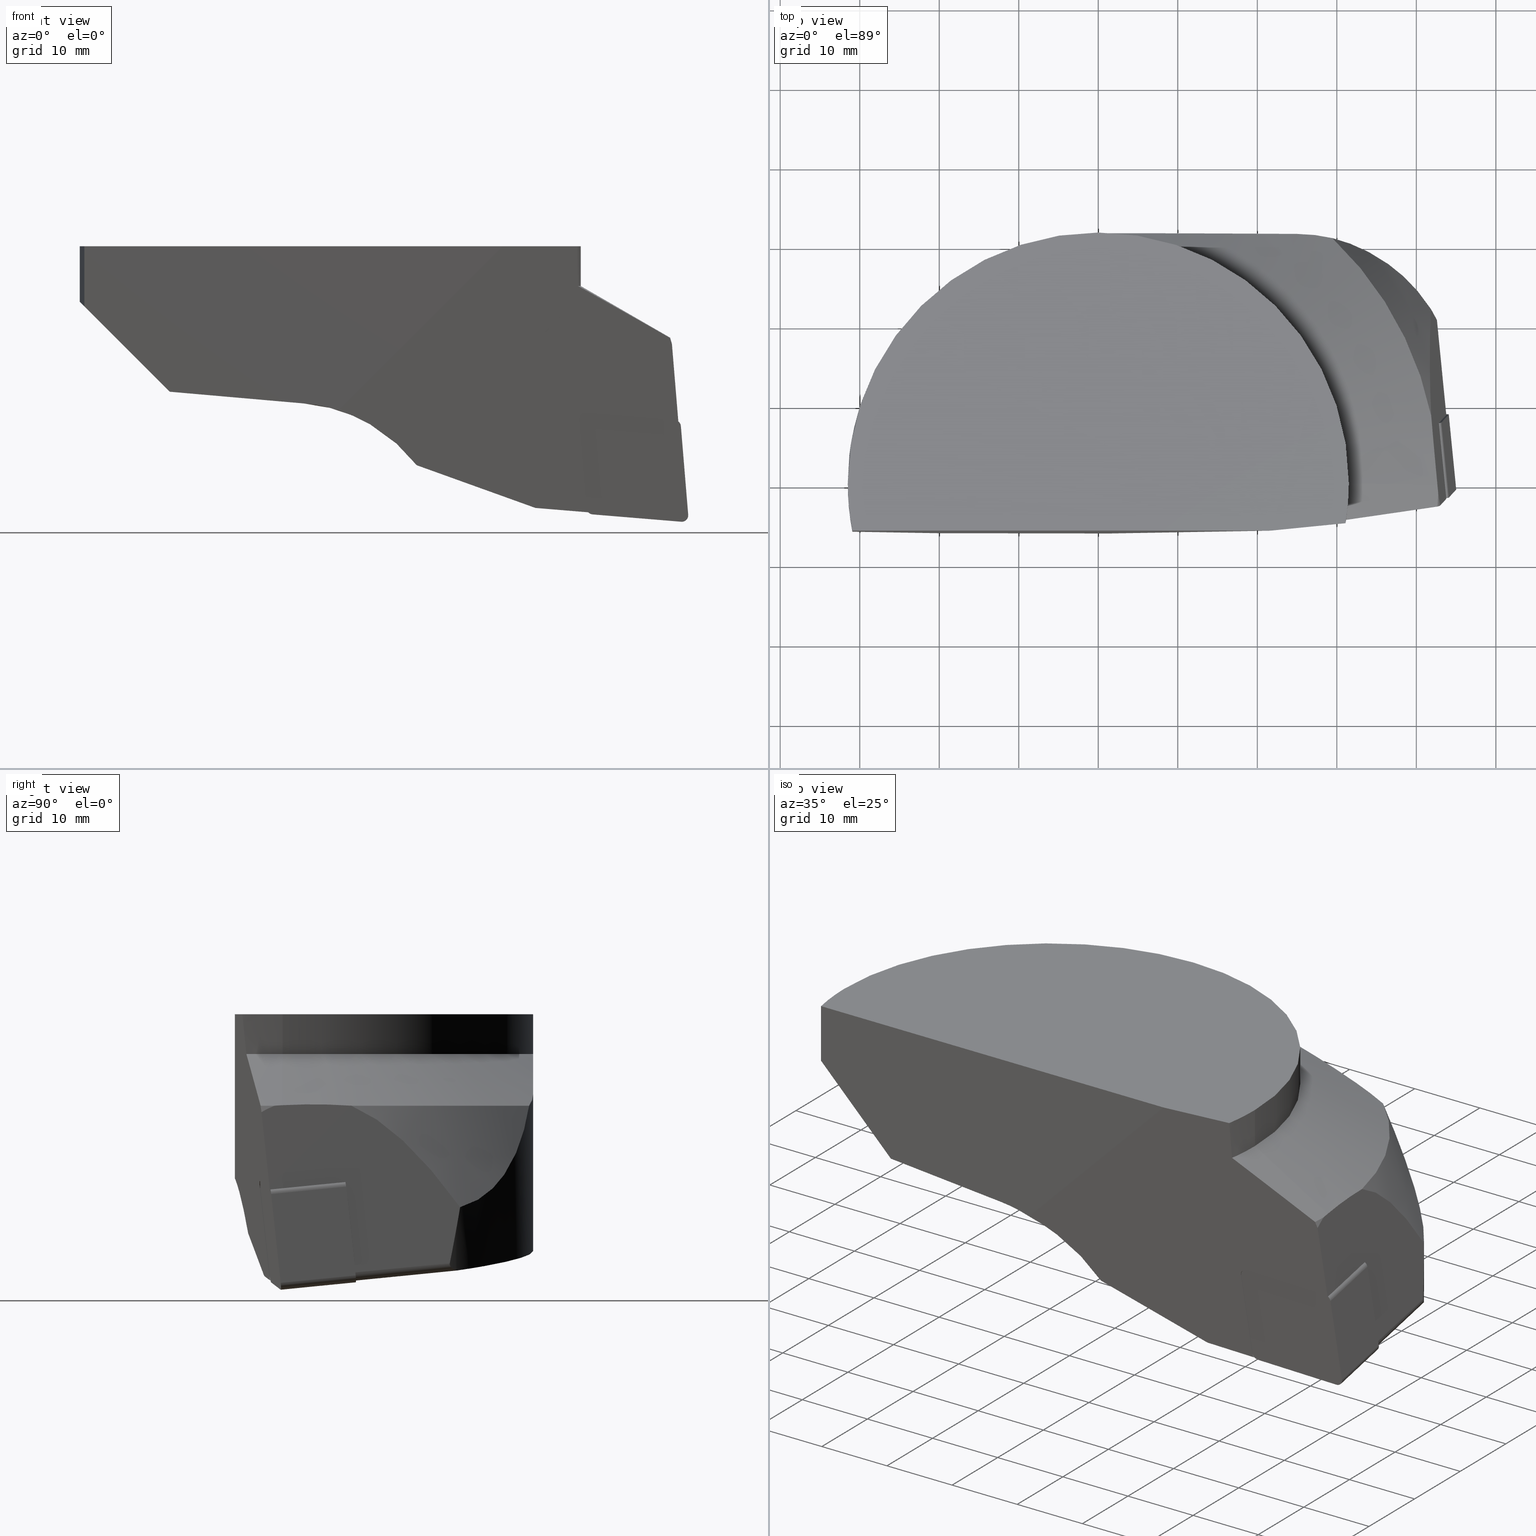
[diagram: canonical four-view strip — front | top / right | iso, engineering-drawing reading convention]
A machine part, canonical four-view strip (front | top / right | iso — engineering-drawing reading convention). The complete STEP part file that produces these views, byte-faithful:
ISO-10303-21;
HEADER;
FILE_DESCRIPTION((''),'1');
FILE_NAME('//Big_tech03/bigt/Translate/11_3D_Field/02_Step_Field/91_\X2\65CB524A30C430FC30EB\X0\/F\X2\30AB30FC30C830EA30C330B8\X0\/F63-DCLNR-45035-12.stp','2012-12-13T08:05:24',(''),(''),'Spatial Interop R18','Kubotek KeyCreator V8.5.1 (14335)',' ');
FILE_SCHEMA(('CONFIG_CONTROL_DESIGN'));
ENDSEC;
DATA;
#1=DESIGN_CONTEXT('',#27,'design');
#2=APPLICATION_PROTOCOL_DEFINITION('INTERNATIONAL STANDARD','config_control_design',1994,#27);
#3=PRODUCT_CATEGORY_RELATIONSHIP('NONE','NONE',#28,#29);
#4=DATE_AND_TIME(#30,#31);
#5=DATE_TIME_ROLE('creation_date');
#6=DATE_TIME_ROLE('classification_date');
#7=PERSON_AND_ORGANIZATION_ROLE('creator');
#8=PERSON_AND_ORGANIZATION_ROLE('design_supplier');
#9=PERSON_AND_ORGANIZATION_ROLE('classification_officer');
#10=PERSON_AND_ORGANIZATION_ROLE('design_owner');
#11=APPROVAL_PERSON_ORGANIZATION(#32,#33,#34);
#12=APPROVAL_DATE_TIME(#4,#33);
#13=CC_DESIGN_APPROVAL(#33,(#35,#36,#37));
#14=CC_DESIGN_DATE_AND_TIME_ASSIGNMENT(#4,#5,(#37));
#15=CC_DESIGN_DATE_AND_TIME_ASSIGNMENT(#4,#6,(#35));
#16=CC_DESIGN_PERSON_AND_ORGANIZATION_ASSIGNMENT(#32,#10,(#38));
#17=CC_DESIGN_PERSON_AND_ORGANIZATION_ASSIGNMENT(#32,#7,(#37));
#18=CC_DESIGN_PERSON_AND_ORGANIZATION_ASSIGNMENT(#32,#7,(#36));
#19=CC_DESIGN_PERSON_AND_ORGANIZATION_ASSIGNMENT(#32,#8,(#36));
#20=CC_DESIGN_SECURITY_CLASSIFICATION(#35,(#36));
#21=CC_DESIGN_PERSON_AND_ORGANIZATION_ASSIGNMENT(#32,#9,(#35));
#22=SHAPE_DEFINITION_REPRESENTATION(#39,#40);
#23= (GEOMETRIC_REPRESENTATION_CONTEXT(3)GLOBAL_UNCERTAINTY_ASSIGNED_CONTEXT((#43))GLOBAL_UNIT_ASSIGNED_CONTEXT((#45,#46,#47))REPRESENTATION_CONTEXT('NONE','WORKSPACE'));
#27=APPLICATION_CONTEXT('CONFIGURATION CONTROLLED 3D DESIGNS OF MECHANICAL PARTS AND ASSEMBLIES');
#28=PRODUCT_CATEGORY('part','NONE');
#29=PRODUCT_RELATED_PRODUCT_CATEGORY('detail',' ',(#38));
#30=CALENDAR_DATE(2012,13,11);
#31=LOCAL_TIME(17,5,24.0,#49);
#32=PERSON_AND_ORGANIZATION(#50,#51);
#33=APPROVAL(#52,'SOLID MODEL');
#34=APPROVAL_ROLE('APPROVED');
#35=SECURITY_CLASSIFICATION('','',#53);
#36=PRODUCT_DEFINITION_FORMATION_WITH_SPECIFIED_SOURCE(' ','NONE',#38,.NOT_KNOWN.);
#37=PRODUCT_DEFINITION('NONE','NONE',#36,#1);
#38=PRODUCT('1','1','PART-1-DESC',(#54));
#39=PRODUCT_DEFINITION_SHAPE('NONE','NONE',#37);
#40=ADVANCED_BREP_SHAPE_REPRESENTATION('1',(#55,#56),#23);
#43=UNCERTAINTY_MEASURE_WITH_UNIT(LENGTH_MEASURE(1.0E-006),#45,'','');
#45= (CONVERSION_BASED_UNIT('MILLIMETRE',#59)LENGTH_UNIT()NAMED_UNIT(#62));
#46= (NAMED_UNIT(#64)PLANE_ANGLE_UNIT()SI_UNIT($,.RADIAN.));
#47= (NAMED_UNIT(#64)SOLID_ANGLE_UNIT()SI_UNIT($,.STERADIAN.));
#49=COORDINATED_UNIVERSAL_TIME_OFFSET(9,0,.AHEAD.);
#50=PERSON('','UNSPECIFIED',$,$,$,$);
#51=ORGANIZATION('UNSPECIFIED','UNSPECIFIED','UNSPECIFIED');
#52=APPROVAL_STATUS('approved');
#53=SECURITY_CLASSIFICATION_LEVEL('unclassified');
#54=MECHANICAL_CONTEXT('',#27,'mechanical');
#55=MANIFOLD_SOLID_BREP('1',#70);
#56=AXIS2_PLACEMENT_3D('',#71,#72,#73);
#59=LENGTH_MEASURE_WITH_UNIT(LENGTH_MEASURE(1.0),#74);
#62=DIMENSIONAL_EXPONENTS(1.0,0.0,0.0,0.0,0.0,0.0,0.0);
#64=DIMENSIONAL_EXPONENTS(0.0,0.0,0.0,0.0,0.0,0.0,0.0);
#70=CLOSED_SHELL('',(#75,#76,#77,#78,#79,#80,#81,#82,#83,#84,#85,#86,#87,#88,#89,#90,#91,#92,#93,#94,#95,#96,#97,#98,#99,#100,#101,#102,#103,#104,#105,#106));
#71=CARTESIAN_POINT('',(0.0,0.0,0.0));
#72=DIRECTION('',(0.0,0.0,1.0));
#73=DIRECTION('',(1.0,0.0,0.0));
#74= (NAMED_UNIT(#62)LENGTH_UNIT()SI_UNIT(.MILLI.,.METRE.));
#75=ADVANCED_FACE('',(#108),#109,.T.);
#76=ADVANCED_FACE('',(#110),#111,.F.);
#77=ADVANCED_FACE('',(#112),#113,.T.);
#78=ADVANCED_FACE('',(#114),#115,.F.);
#79=ADVANCED_FACE('',(#116),#117,.T.);
#80=ADVANCED_FACE('',(#118),#119,.F.);
#81=ADVANCED_FACE('',(#120),#121,.T.);
#82=ADVANCED_FACE('',(#122),#123,.F.);
#83=ADVANCED_FACE('',(#124),#125,.T.);
#84=ADVANCED_FACE('',(#126),#127,.F.);
#85=ADVANCED_FACE('',(#128),#129,.T.);
#86=ADVANCED_FACE('',(#130),#131,.F.);
#87=ADVANCED_FACE('',(#132),#133,.T.);
#88=ADVANCED_FACE('',(#134),#135,.T.);
#89=ADVANCED_FACE('',(#136),#137,.T.);
#90=ADVANCED_FACE('',(#138),#139,.T.);
#91=ADVANCED_FACE('',(#140),#141,.T.);
#92=ADVANCED_FACE('',(#142),#143,.T.);
#93=ADVANCED_FACE('',(#144),#145,.T.);
#94=ADVANCED_FACE('',(#146),#147,.T.);
#95=ADVANCED_FACE('',(#148),#149,.T.);
#96=ADVANCED_FACE('',(#150),#151,.T.);
#97=ADVANCED_FACE('',(#152),#153,.T.);
#98=ADVANCED_FACE('',(#154),#155,.T.);
#99=ADVANCED_FACE('',(#156),#157,.T.);
#100=ADVANCED_FACE('',(#158),#159,.T.);
#101=ADVANCED_FACE('',(#160),#161,.T.);
#102=ADVANCED_FACE('',(#162),#163,.F.);
#103=ADVANCED_FACE('',(#164),#165,.T.);
#104=ADVANCED_FACE('',(#166),#167,.T.);
#105=ADVANCED_FACE('',(#168),#169,.T.);
#106=ADVANCED_FACE('',(#170),#171,.T.);
#108=FACE_OUTER_BOUND('',#172,.T.);
#109=CYLINDRICAL_SURFACE('',#173,0.80000741148832);
#110=FACE_OUTER_BOUND('',#174,.T.);
#111=PLANE('',#175);
#112=FACE_OUTER_BOUND('',#176,.T.);
#113=CYLINDRICAL_SURFACE('',#177,0.799992667747076);
#114=FACE_OUTER_BOUND('',#178,.T.);
#115=PLANE('',#179);
#116=FACE_OUTER_BOUND('',#180,.T.);
#117=CYLINDRICAL_SURFACE('',#181,0.8);
#118=FACE_OUTER_BOUND('',#182,.T.);
#119=PLANE('',#183);
#120=FACE_OUTER_BOUND('',#184,.T.);
#121=PLANE('',#185);
#122=FACE_OUTER_BOUND('',#186,.T.);
#123=CYLINDRICAL_SURFACE('',#187,0.800007411488319);
#124=FACE_OUTER_BOUND('',#188,.T.);
#125=PLANE('',#189);
#126=FACE_OUTER_BOUND('',#190,.T.);
#127=CYLINDRICAL_SURFACE('',#191,0.800000273792741);
#128=FACE_OUTER_BOUND('',#192,.T.);
#129=PLANE('',#193);
#130=FACE_OUTER_BOUND('',#194,.T.);
#131=CYLINDRICAL_SURFACE('',#195,0.799992667747076);
#132=FACE_OUTER_BOUND('',#196,.T.);
#133=PLANE('',#197);
#134=FACE_OUTER_BOUND('',#198,.T.);
#135=PLANE('',#199);
#136=FACE_OUTER_BOUND('',#200,.T.);
#137=PLANE('',#201);
#138=FACE_OUTER_BOUND('',#202,.T.);
#139=PLANE('',#203);
#140=FACE_OUTER_BOUND('',#204,.T.);
#141=PLANE('',#205);
#142=FACE_OUTER_BOUND('',#206,.T.);
#143=CYLINDRICAL_SURFACE('',#207,20.0);
#144=FACE_OUTER_BOUND('',#208,.T.);
#145=CYLINDRICAL_SURFACE('',#209,1.19999999999999);
#146=FACE_OUTER_BOUND('',#210,.T.);
#147=CYLINDRICAL_SURFACE('',#211,31.5);
#148=FACE_OUTER_BOUND('',#212,.T.);
#149=CYLINDRICAL_SURFACE('',#213,31.5);
#150=FACE_OUTER_BOUND('',#214,.T.);
#151=CONICAL_SURFACE('',#215,33.0935274423847,1.0471975488034);
#152=FACE_OUTER_BOUND('',#216,.T.);
#153=CONICAL_SURFACE('',#217,33.1071076825604,1.0471975488034);
#154=FACE_OUTER_BOUND('',#218,.T.);
#155=CYLINDRICAL_SURFACE('',#219,31.5);
#156=FACE_OUTER_BOUND('',#220,.T.);
#157=CYLINDRICAL_SURFACE('',#221,1.19999999999998);
#158=FACE_OUTER_BOUND('',#222,.T.);
#159=CONICAL_SURFACE('',#223,43.4193818987798,0.349065849601138);
#160=FACE_OUTER_BOUND('',#224,.T.);
#161=PLANE('',#225);
#162=FACE_OUTER_BOUND('',#226,.T.);
#163=CYLINDRICAL_SURFACE('',#227,20.0);
#164=FACE_OUTER_BOUND('',#228,.T.);
#165=PLANE('',#229);
#166=FACE_OUTER_BOUND('',#230,.T.);
#167=PLANE('',#231);
#168=FACE_OUTER_BOUND('',#232,.T.);
#169=PLANE('',#233);
#170=FACE_OUTER_BOUND('',#234,.T.);
#171=CONICAL_SURFACE('',#235,42.8001588308081,0.349065849601111);
#172=EDGE_LOOP('',(#236,#237,#238,#239));
#173=AXIS2_PLACEMENT_3D('',#240,#241,#242);
#174=EDGE_LOOP('',(#243,#244,#245,#246,#247,#248,#249,#250,#251));
#175=AXIS2_PLACEMENT_3D('',#252,#253,#254);
#176=EDGE_LOOP('',(#255,#256,#257,#258));
#177=AXIS2_PLACEMENT_3D('',#259,#260,#261);
#178=EDGE_LOOP('',(#262,#263,#264,#265));
#179=AXIS2_PLACEMENT_3D('',#266,#267,#268);
#180=EDGE_LOOP('',(#269,#270,#271,#272));
#181=AXIS2_PLACEMENT_3D('',#273,#274,#275);
#182=EDGE_LOOP('',(#276,#277,#278,#279));
#183=AXIS2_PLACEMENT_3D('',#280,#281,#282);
#184=EDGE_LOOP('',(#283,#284,#285,#286,#287,#288,#289,#290,#291,#292));
#185=AXIS2_PLACEMENT_3D('',#293,#294,#295);
#186=EDGE_LOOP('',(#296,#297,#298,#299));
#187=AXIS2_PLACEMENT_3D('',#300,#301,#302);
#188=EDGE_LOOP('',(#303,#304,#305,#306));
#189=AXIS2_PLACEMENT_3D('',#307,#308,#309);
#190=EDGE_LOOP('',(#310,#311,#312,#313));
#191=AXIS2_PLACEMENT_3D('',#314,#315,#316);
#192=EDGE_LOOP('',(#317,#318,#319,#320));
#193=AXIS2_PLACEMENT_3D('',#321,#322,#323);
#194=EDGE_LOOP('',(#324,#325,#326,#327));
#195=AXIS2_PLACEMENT_3D('',#328,#329,#330);
#196=EDGE_LOOP('',(#331,#332,#333,#334,#335,#336,#337,#338,#339,#340));
#197=AXIS2_PLACEMENT_3D('',#341,#342,#343);
#198=EDGE_LOOP('',(#344,#345,#346,#347,#348,#349,#350,#351,#352,#353,#354,#355,#356,#357));
#199=AXIS2_PLACEMENT_3D('',#358,#359,#360);
#200=EDGE_LOOP('',(#361,#362,#363,#364));
#201=AXIS2_PLACEMENT_3D('',#365,#366,#367);
#202=EDGE_LOOP('',(#368,#369,#370,#371,#372,#373,#374,#375));
#203=AXIS2_PLACEMENT_3D('',#376,#377,#378);
#204=EDGE_LOOP('',(#379,#380,#381,#382,#383,#384));
#205=AXIS2_PLACEMENT_3D('',#385,#386,#387);
#206=EDGE_LOOP('',(#388,#389,#390,#391,#392,#393,#394));
#207=AXIS2_PLACEMENT_3D('',#395,#396,#397);
#208=EDGE_LOOP('',(#398,#399,#400,#401));
#209=AXIS2_PLACEMENT_3D('',#402,#403,#404);
#210=EDGE_LOOP('',(#405,#406,#407,#408));
#211=AXIS2_PLACEMENT_3D('',#409,#410,#411);
#212=EDGE_LOOP('',(#412,#413,#414,#415,#416,#417,#418,#419));
#213=AXIS2_PLACEMENT_3D('',#420,#421,#422);
#214=EDGE_LOOP('',(#423,#424,#425,#426,#427,#428));
#215=AXIS2_PLACEMENT_3D('',#429,#430,#431);
#216=EDGE_LOOP('',(#432,#433,#434,#435,#436));
#217=AXIS2_PLACEMENT_3D('',#437,#438,#439);
#218=EDGE_LOOP('',(#440,#441,#442,#443));
#219=AXIS2_PLACEMENT_3D('',#444,#445,#446);
#220=EDGE_LOOP('',(#447,#448,#449,#450));
#221=AXIS2_PLACEMENT_3D('',#451,#452,#453);
#222=EDGE_LOOP('',(#454,#455,#456));
#223=AXIS2_PLACEMENT_3D('',#457,#458,#459);
#224=EDGE_LOOP('',(#460,#461,#462,#463,#464));
#225=AXIS2_PLACEMENT_3D('',#465,#466,#467);
#226=EDGE_LOOP('',(#468,#469,#470,#471,#472,#473));
#227=AXIS2_PLACEMENT_3D('',#474,#475,#476);
#228=EDGE_LOOP('',(#477,#478,#479,#480));
#229=AXIS2_PLACEMENT_3D('',#481,#482,#483);
#230=EDGE_LOOP('',(#484,#485,#486,#487,#488,#489));
#231=AXIS2_PLACEMENT_3D('',#490,#491,#492);
#232=EDGE_LOOP('',(#493,#494,#495,#496));
#233=AXIS2_PLACEMENT_3D('',#497,#498,#499);
#234=EDGE_LOOP('',(#500,#501,#502));
#235=AXIS2_PLACEMENT_3D('',#503,#504,#505);
#236=ORIENTED_EDGE('',*,*,#506,.T.);
#237=ORIENTED_EDGE('',*,*,#507,.F.);
#238=ORIENTED_EDGE('',*,*,#508,.F.);
#239=ORIENTED_EDGE('',*,*,#509,.F.);
#240=CARTESIAN_POINT('',(42.3619746890796,7.91328772733197,-21.7481769551916));
#241=DIRECTION('',(0.0984102433908721,-0.990268068747763,-0.0984102434420539));
#242=DIRECTION('',(0.0915790953150045,-0.0894587448704657,0.99177134575843));
#243=ORIENTED_EDGE('',*,*,#510,.T.);
#244=ORIENTED_EDGE('',*,*,#509,.T.);
#245=ORIENTED_EDGE('',*,*,#511,.T.);
#246=ORIENTED_EDGE('',*,*,#512,.T.);
#247=ORIENTED_EDGE('',*,*,#513,.T.);
#248=ORIENTED_EDGE('',*,*,#514,.T.);
#249=ORIENTED_EDGE('',*,*,#515,.T.);
#250=ORIENTED_EDGE('',*,*,#516,.T.);
#251=ORIENTED_EDGE('',*,*,#517,.T.);
#252=CARTESIAN_POINT('',(40.5530539889252,8.57077803435889,-30.1731940462742));
#253=DIRECTION('',(0.0984102433908721,-0.990268068747763,-0.0984102434420542));
#254=DIRECTION('',(-1.09257318071512E-018,-0.0988902636045272,0.995098344770117));
#255=ORIENTED_EDGE('',*,*,#518,.T.);
#256=ORIENTED_EDGE('',*,*,#514,.F.);
#257=ORIENTED_EDGE('',*,*,#519,.T.);
#258=ORIENTED_EDGE('',*,*,#520,.F.);
#259=CARTESIAN_POINT('',(32.115982640296,7.91328772733154,-31.994168998642));
#260=DIRECTION('',(0.0984102433908721,-0.990268068747763,-0.0984102434420539));
#261=DIRECTION('',(-0.0915790952854222,0.0894587448736484,-0.991771345760874));
#262=ORIENTED_EDGE('',*,*,#521,.F.);
#263=ORIENTED_EDGE('',*,*,#519,.F.);
#264=ORIENTED_EDGE('',*,*,#513,.F.);
#265=ORIENTED_EDGE('',*,*,#522,.T.);
#266=CARTESIAN_POINT('',(32.0427200355488,7.98485406729631,-32.7875788033324));
#267=DIRECTION('',(0.091579095315045,-0.0894587448704613,0.991771345758426));
#268=DIRECTION('',(0.995763832412983,0.0,-0.0919477572222935));
#269=ORIENTED_EDGE('',*,*,#523,.F.);
#270=ORIENTED_EDGE('',*,*,#522,.F.);
#271=ORIENTED_EDGE('',*,*,#512,.F.);
#272=ORIENTED_EDGE('',*,*,#524,.T.);
#273=CARTESIAN_POINT('',(43.2849175903818,9.11494548170889,-32.9170982963604));
#274=DIRECTION('',(0.0984102433908721,-0.990268068747763,-0.0984102434420539));
#275=DIRECTION('',(0.991771345806052,0.0894587448704573,0.0915790947992765));
#276=ORIENTED_EDGE('',*,*,#525,.F.);
#277=ORIENTED_EDGE('',*,*,#524,.F.);
#278=ORIENTED_EDGE('',*,*,#511,.F.);
#279=ORIENTED_EDGE('',*,*,#508,.T.);
#280=CARTESIAN_POINT('',(44.0783346670266,9.18651247760525,-32.843835020521));
#281=DIRECTION('',(-0.991771345806051,-0.0894587448704556,-0.0915790947992925));
#282=DIRECTION('',(-0.0919477567044646,0.0,0.995763832460798));
#283=ORIENTED_EDGE('',*,*,#507,.T.);
#284=ORIENTED_EDGE('',*,*,#526,.T.);
#285=ORIENTED_EDGE('',*,*,#527,.T.);
#286=ORIENTED_EDGE('',*,*,#528,.T.);
#287=ORIENTED_EDGE('',*,*,#529,.T.);
#288=ORIENTED_EDGE('',*,*,#530,.T.);
#289=ORIENTED_EDGE('',*,*,#520,.T.);
#290=ORIENTED_EDGE('',*,*,#521,.T.);
#291=ORIENTED_EDGE('',*,*,#523,.T.);
#292=ORIENTED_EDGE('',*,*,#525,.T.);
#293=CARTESIAN_POINT('',(41.4899195060063,-0.85657398011982,-31.1100595638425));
#294=DIRECTION('',(0.0984102433908721,-0.990268068747763,-0.0984102434420541));
#295=DIRECTION('',(-8.44352571521498E-018,-0.0988902636045271,0.995098344770117));
#296=ORIENTED_EDGE('',*,*,#526,.F.);
#297=ORIENTED_EDGE('',*,*,#531,.T.);
#298=ORIENTED_EDGE('',*,*,#532,.T.);
#299=ORIENTED_EDGE('',*,*,#533,.T.);
#300=CARTESIAN_POINT('',(43.3067130256319,-1.59328573264656,-22.6929152922354));
#301=DIRECTION('',(-0.098410243390872,0.990268068747763,0.0984102434420542));
#302=DIRECTION('',(0.091579095314995,-0.0894587448704671,0.99177134575843));
#303=ORIENTED_EDGE('',*,*,#527,.F.);
#304=ORIENTED_EDGE('',*,*,#533,.F.);
#305=ORIENTED_EDGE('',*,*,#534,.T.);
#306=ORIENTED_EDGE('',*,*,#535,.T.);
#307=CARTESIAN_POINT('',(32.2110552795393,-2.86651048731532,-20.9765549459433));
#308=DIRECTION('',(-0.0915791295265909,0.0894587411896635,-0.99177134293138));
#309=DIRECTION('',(-0.995763829244026,0.0,0.091947791541041));
#310=ORIENTED_EDGE('',*,*,#528,.F.);
#311=ORIENTED_EDGE('',*,*,#535,.F.);
#312=ORIENTED_EDGE('',*,*,#536,.T.);
#313=ORIENTED_EDGE('',*,*,#537,.T.);
#314=CARTESIAN_POINT('',(32.1377919508409,-2.79494346987081,-21.7699722918279));
#315=DIRECTION('',(-0.098410243390872,0.990268068747763,0.0984102434420542));
#316=DIRECTION('',(-0.991771345806051,-0.0894587448704563,-0.0915790947992846));
#317=ORIENTED_EDGE('',*,*,#529,.F.);
#318=ORIENTED_EDGE('',*,*,#537,.F.);
#319=ORIENTED_EDGE('',*,*,#538,.T.);
#320=ORIENTED_EDGE('',*,*,#539,.T.);
#321=CARTESIAN_POINT('',(32.2673111721222,-1.66485207260877,-33.0121699400482));
#322=DIRECTION('',(0.991771345806052,0.0894587448704564,0.0915790947992834));
#323=DIRECTION('',(0.0919477567044555,-9.93191583092483E-019,-0.995763832460799));
#324=ORIENTED_EDGE('',*,*,#530,.F.);
#325=ORIENTED_EDGE('',*,*,#539,.F.);
#326=ORIENTED_EDGE('',*,*,#540,.T.);
#327=ORIENTED_EDGE('',*,*,#541,.T.);
#328=CARTESIAN_POINT('',(33.0607209768484,-1.59328573264699,-32.9389073356857));
#329=DIRECTION('',(-0.098410243390872,0.990268068747763,0.0984102434420542));
#330=DIRECTION('',(-0.0915790952854272,0.0894587448736482,-0.991771345760874));
#331=ORIENTED_EDGE('',*,*,#510,.F.);
#332=ORIENTED_EDGE('',*,*,#542,.F.);
#333=ORIENTED_EDGE('',*,*,#543,.F.);
#334=ORIENTED_EDGE('',*,*,#544,.F.);
#335=ORIENTED_EDGE('',*,*,#545,.F.);
#336=ORIENTED_EDGE('',*,*,#546,.F.);
#337=ORIENTED_EDGE('',*,*,#547,.F.);
#338=ORIENTED_EDGE('',*,*,#548,.F.);
#339=ORIENTED_EDGE('',*,*,#531,.F.);
#340=ORIENTED_EDGE('',*,*,#506,.F.);
#341=CARTESIAN_POINT('',(42.7774224748864,9.80429004788062,-22.4037875772884));
#342=DIRECTION('',(0.991771345779424,0.0894587448987813,0.0915790950599777));
#343=DIRECTION('',(0.0919477569664342,-9.93191583406953E-019,-0.995763832436608));
#344=ORIENTED_EDGE('',*,*,#532,.F.);
#345=ORIENTED_EDGE('',*,*,#548,.T.);
#346=ORIENTED_EDGE('',*,*,#549,.F.);
#347=ORIENTED_EDGE('',*,*,#550,.F.);
#348=ORIENTED_EDGE('',*,*,#551,.F.);
#349=ORIENTED_EDGE('',*,*,#552,.F.);
#350=ORIENTED_EDGE('',*,*,#553,.F.);
#351=ORIENTED_EDGE('',*,*,#554,.F.);
#352=ORIENTED_EDGE('',*,*,#555,.F.);
#353=ORIENTED_EDGE('',*,*,#556,.F.);
#354=ORIENTED_EDGE('',*,*,#540,.F.);
#355=ORIENTED_EDGE('',*,*,#538,.F.);
#356=ORIENTED_EDGE('',*,*,#536,.F.);
#357=ORIENTED_EDGE('',*,*,#534,.F.);
#358=CARTESIAN_POINT('',(22.9685662592186,-4.13494853160881,-17.4551928773134));
#359=DIRECTION('',(0.0984102433908721,-0.990268068747763,-0.0984102434420541));
#360=DIRECTION('',(0.0,-0.0988902636045272,0.995098344770117));
#361=ORIENTED_EDGE('',*,*,#557,.T.);
#362=ORIENTED_EDGE('',*,*,#558,.T.);
#363=ORIENTED_EDGE('',*,*,#559,.F.);
#364=ORIENTED_EDGE('',*,*,#555,.T.);
#365=CARTESIAN_POINT('',(10.8800368838606,-4.33390494508025,-27.5416930221668));
#366=DIRECTION('',(-0.344928397059897,0.0588170940226637,-0.936784367051681));
#367=DIRECTION('',(-0.938408963022606,-2.61200368102015E-018,0.34552658091504));
#368=ORIENTED_EDGE('',*,*,#515,.F.);
#369=ORIENTED_EDGE('',*,*,#518,.F.);
#370=ORIENTED_EDGE('',*,*,#541,.F.);
#371=ORIENTED_EDGE('',*,*,#556,.T.);
#372=ORIENTED_EDGE('',*,*,#559,.T.);
#373=ORIENTED_EDGE('',*,*,#560,.T.);
#374=ORIENTED_EDGE('',*,*,#561,.T.);
#375=ORIENTED_EDGE('',*,*,#562,.T.);
#376=CARTESIAN_POINT('',(25.8052359219045,-2.31713033725737,-32.910595765592));
#377=DIRECTION('',(-0.0915790950598927,0.0894587448979133,-0.99177134577951));
#378=DIRECTION('',(-0.995763832436617,0.0,0.0919477569663416));
#379=ORIENTED_EDGE('',*,*,#558,.F.);
#380=ORIENTED_EDGE('',*,*,#563,.T.);
#381=ORIENTED_EDGE('',*,*,#564,.T.);
#382=ORIENTED_EDGE('',*,*,#565,.T.);
#383=ORIENTED_EDGE('',*,*,#566,.T.);
#384=ORIENTED_EDGE('',*,*,#560,.F.);
#385=CARTESIAN_POINT('',(12.5,31.5,-17.5633951330874));
#386=DIRECTION('',(-0.0,1.0,0.0));
#387=DIRECTION('',(0.0,0.0,-1.0));
#388=ORIENTED_EDGE('',*,*,#561,.F.);
#389=ORIENTED_EDGE('',*,*,#566,.F.);
#390=ORIENTED_EDGE('',*,*,#567,.F.);
#391=ORIENTED_EDGE('',*,*,#568,.F.);
#392=ORIENTED_EDGE('',*,*,#543,.T.);
#393=ORIENTED_EDGE('',*,*,#569,.F.);
#394=ORIENTED_EDGE('',*,*,#570,.F.);
#395=CARTESIAN_POINT('',(25.0,11.5,-27.9223097986086));
#396=DIRECTION('',(-0.0,0.0,1.0));
#397=DIRECTION('',(0.859167550434077,-0.51169436217444,0.0));
#398=ORIENTED_EDGE('',*,*,#516,.F.);
#399=ORIENTED_EDGE('',*,*,#562,.F.);
#400=ORIENTED_EDGE('',*,*,#570,.T.);
#401=ORIENTED_EDGE('',*,*,#571,.T.);
#402=CARTESIAN_POINT('',(41.6294048914841,18.5618979455036,-31.6294046967241));
#403=DIRECTION('',(0.0984102434476215,-0.990268068741571,-0.0984102434476195));
#404=DIRECTION('',(-0.936791001506119,-0.0588195862319405,-0.344909953136564));
#405=ORIENTED_EDGE('',*,*,#572,.F.);
#406=ORIENTED_EDGE('',*,*,#573,.T.);
#407=ORIENTED_EDGE('',*,*,#574,.F.);
#408=ORIENTED_EDGE('',*,*,#575,.T.);
#409=CARTESIAN_POINT('',(-1.11022302462516E-014,8.88178419700125E-015,-1.51534156157351));
#410=DIRECTION('',(-0.0,-0.0,-1.0));
#411=DIRECTION('',(0.095677020168762,-0.9954124310112,0.0));
#412=ORIENTED_EDGE('',*,*,#576,.T.);
#413=ORIENTED_EDGE('',*,*,#577,.F.);
#414=ORIENTED_EDGE('',*,*,#564,.F.);
#415=ORIENTED_EDGE('',*,*,#578,.F.);
#416=ORIENTED_EDGE('',*,*,#579,.F.);
#417=ORIENTED_EDGE('',*,*,#580,.T.);
#418=ORIENTED_EDGE('',*,*,#572,.T.);
#419=ORIENTED_EDGE('',*,*,#581,.T.);
#420=CARTESIAN_POINT('',(-1.22124532708767E-014,4.44089209850063E-015,-4.06702151976236));
#421=DIRECTION('',(-0.0,-0.0,-1.0));
#422=DIRECTION('',(0.0,-1.0,0.0));
#423=ORIENTED_EDGE('',*,*,#582,.T.);
#424=ORIENTED_EDGE('',*,*,#545,.T.);
#425=ORIENTED_EDGE('',*,*,#583,.F.);
#426=ORIENTED_EDGE('',*,*,#567,.T.);
#427=ORIENTED_EDGE('',*,*,#565,.F.);
#428=ORIENTED_EDGE('',*,*,#577,.T.);
#429=CARTESIAN_POINT('',(-6.21724893790088E-014,3.33066907387547E-014,-5.92002348494438));
#430=DIRECTION('',(-0.0,-0.0,-1.0));
#431=DIRECTION('',(-0.707106781186546,0.707106781186549,0.0));
#432=ORIENTED_EDGE('',*,*,#582,.F.);
#433=ORIENTED_EDGE('',*,*,#584,.T.);
#434=ORIENTED_EDGE('',*,*,#550,.T.);
#435=ORIENTED_EDGE('',*,*,#585,.F.);
#436=ORIENTED_EDGE('',*,*,#546,.T.);
#437=CARTESIAN_POINT('',(-2.22044604925031E-014,7.7715611723761E-015,-5.92786404030881));
#438=DIRECTION('',(-0.0,0.0,-1.0));
#439=DIRECTION('',(0.0725374939448469,0.997365686181453,0.0));
#440=ORIENTED_EDGE('',*,*,#576,.F.);
#441=ORIENTED_EDGE('',*,*,#586,.T.);
#442=ORIENTED_EDGE('',*,*,#551,.T.);
#443=ORIENTED_EDGE('',*,*,#584,.F.);
#444=CARTESIAN_POINT('',(-9.99200722162641E-015,4.44089209850063E-015,-1.00000000311114));
#445=DIRECTION('',(-0.0,0.0,-1.0));
#446=DIRECTION('',(0.0806189171690596,0.996744997576857,0.0));
#447=ORIENTED_EDGE('',*,*,#517,.F.);
#448=ORIENTED_EDGE('',*,*,#571,.F.);
#449=ORIENTED_EDGE('',*,*,#569,.T.);
#450=ORIENTED_EDGE('',*,*,#542,.T.);
#451=CARTESIAN_POINT('',(41.7622732177825,17.2248901679496,-31.7622730230226));
#452=DIRECTION('',(0.0984102434476205,-0.99026806874157,-0.098410243447625));
#453=DIRECTION('',(-0.344958911790557,0.0588129706348174,-0.936773389706061));
#454=ORIENTED_EDGE('',*,*,#544,.T.);
#455=ORIENTED_EDGE('',*,*,#568,.T.);
#456=ORIENTED_EDGE('',*,*,#583,.T.);
#457=CARTESIAN_POINT('',(0.0,3.33066907387547E-015,-13.3162244555885));
#458=DIRECTION('',(-0.0,-0.0,-1.0));
#459=DIRECTION('',(-0.485818585792204,0.874059667127401,0.0));
#460=ORIENTED_EDGE('',*,*,#575,.F.);
#461=ORIENTED_EDGE('',*,*,#587,.F.);
#462=ORIENTED_EDGE('',*,*,#552,.T.);
#463=ORIENTED_EDGE('',*,*,#586,.F.);
#464=ORIENTED_EDGE('',*,*,#581,.F.);
#465=CARTESIAN_POINT('',(0.0,12.75,0.0));
#466=DIRECTION('',(-0.0,0.0,1.0));
#467=DIRECTION('',(1.0,0.0,0.0));
#468=ORIENTED_EDGE('',*,*,#557,.F.);
#469=ORIENTED_EDGE('',*,*,#554,.T.);
#470=ORIENTED_EDGE('',*,*,#588,.F.);
#471=ORIENTED_EDGE('',*,*,#589,.F.);
#472=ORIENTED_EDGE('',*,*,#578,.T.);
#473=ORIENTED_EDGE('',*,*,#563,.F.);
#474=CARTESIAN_POINT('',(-5.00000000000002,24.0000194638791,-39.7));
#475=DIRECTION('',(-0.0,-1.0,-0.0));
#476=DIRECTION('',(0.868821590504896,0.0,-0.495125280987089));
#477=ORIENTED_EDGE('',*,*,#580,.F.);
#478=ORIENTED_EDGE('',*,*,#590,.F.);
#479=ORIENTED_EDGE('',*,*,#591,.F.);
#480=ORIENTED_EDGE('',*,*,#573,.F.);
#481=CARTESIAN_POINT('',(-25.8534106077438,9.08236707319101,-12.6465893922562));
#482=DIRECTION('',(-0.707106781186548,1.3012649565089E-016,-0.707106781186547));
#483=DIRECTION('',(-0.707106781186547,0.0,0.707106781186548));
#484=ORIENTED_EDGE('',*,*,#553,.T.);
#485=ORIENTED_EDGE('',*,*,#587,.T.);
#486=ORIENTED_EDGE('',*,*,#574,.T.);
#487=ORIENTED_EDGE('',*,*,#591,.T.);
#488=ORIENTED_EDGE('',*,*,#592,.T.);
#489=ORIENTED_EDGE('',*,*,#588,.T.);
#490=CARTESIAN_POINT('',(-4.633448811208,-6.00000000000001,-10.3148239949214));
#491=DIRECTION('',(0.0,-1.0,0.0));
#492=DIRECTION('',(0.0,0.0,1.0));
#493=ORIENTED_EDGE('',*,*,#592,.F.);
#494=ORIENTED_EDGE('',*,*,#590,.T.);
#495=ORIENTED_EDGE('',*,*,#579,.T.);
#496=ORIENTED_EDGE('',*,*,#589,.T.);
#497=CARTESIAN_POINT('',(-11.7318531802672,12.6655888746,-19.0346424113388));
#498=DIRECTION('',(-0.0871557427476571,-0.0,-0.996194698091746));
#499=DIRECTION('',(-0.996194698091746,0.0,0.0871557427476571));
#500=ORIENTED_EDGE('',*,*,#547,.T.);
#501=ORIENTED_EDGE('',*,*,#585,.T.);
#502=ORIENTED_EDGE('',*,*,#549,.T.);
#503=CARTESIAN_POINT('',(-1.77635683940025E-014,1.88737914186277E-014,-11.6149230545077));
#504=DIRECTION('',(-0.0,0.0,-1.0));
#505=DIRECTION('',(0.0442370163345224,0.999021064035098,0.0));
#506=EDGE_CURVE('',#593,#594,#595,.T.);
#507=EDGE_CURVE('',#596,#594,#597,.T.);
#508=EDGE_CURVE('',#598,#596,#599,.T.);
#509=EDGE_CURVE('',#593,#598,#600,.T.);
#510=EDGE_CURVE('',#601,#593,#602,.T.);
#511=EDGE_CURVE('',#598,#603,#604,.T.);
#512=EDGE_CURVE('',#603,#605,#606,.T.);
#513=EDGE_CURVE('',#605,#607,#608,.T.);
#514=EDGE_CURVE('',#607,#609,#610,.T.);
#515=EDGE_CURVE('',#609,#611,#612,.T.);
#516=EDGE_CURVE('',#611,#613,#614,.T.);
#517=EDGE_CURVE('',#613,#601,#615,.T.);
#518=EDGE_CURVE('',#616,#609,#617,.T.);
#519=EDGE_CURVE('',#607,#618,#619,.T.);
#520=EDGE_CURVE('',#616,#618,#620,.T.);
#521=EDGE_CURVE('',#618,#621,#622,.T.);
#522=EDGE_CURVE('',#605,#621,#623,.T.);
#523=EDGE_CURVE('',#621,#624,#625,.T.);
#524=EDGE_CURVE('',#603,#624,#626,.T.);
#525=EDGE_CURVE('',#624,#596,#627,.T.);
#526=EDGE_CURVE('',#594,#628,#629,.T.);
#527=EDGE_CURVE('',#628,#630,#631,.T.);
#528=EDGE_CURVE('',#630,#632,#633,.T.);
#529=EDGE_CURVE('',#632,#634,#635,.T.);
#530=EDGE_CURVE('',#634,#616,#636,.T.);
#531=EDGE_CURVE('',#594,#637,#638,.T.);
#532=EDGE_CURVE('',#637,#639,#640,.T.);
#533=EDGE_CURVE('',#639,#628,#641,.T.);
#534=EDGE_CURVE('',#639,#642,#643,.T.);
#535=EDGE_CURVE('',#642,#630,#644,.T.);
#536=EDGE_CURVE('',#642,#645,#646,.T.);
#537=EDGE_CURVE('',#645,#632,#647,.T.);
#538=EDGE_CURVE('',#645,#648,#649,.T.);
#539=EDGE_CURVE('',#648,#634,#650,.T.);
#540=EDGE_CURVE('',#648,#651,#652,.T.);
#541=EDGE_CURVE('',#651,#616,#653,.T.);
#542=EDGE_CURVE('',#654,#601,#655,.T.);
#543=EDGE_CURVE('',#656,#654,#657,.T.);
#544=EDGE_CURVE('',#658,#656,#659,.T.);
#545=EDGE_CURVE('',#660,#658,#661,.T.);
#546=EDGE_CURVE('',#662,#660,#663,.T.);
#547=EDGE_CURVE('',#664,#662,#665,.T.);
#548=EDGE_CURVE('',#637,#664,#666,.T.);
#549=EDGE_CURVE('',#667,#664,#668,.T.);
#550=EDGE_CURVE('',#669,#667,#670,.T.);
#551=EDGE_CURVE('',#671,#669,#672,.T.);
#552=EDGE_CURVE('',#673,#671,#674,.T.);
#553=EDGE_CURVE('',#675,#673,#676,.T.);
#554=EDGE_CURVE('',#677,#675,#678,.T.);
#555=EDGE_CURVE('',#679,#677,#680,.T.);
#556=EDGE_CURVE('',#651,#679,#681,.T.);
#557=EDGE_CURVE('',#677,#682,#683,.T.);
#558=EDGE_CURVE('',#682,#684,#685,.T.);
#559=EDGE_CURVE('',#679,#684,#686,.T.);
#560=EDGE_CURVE('',#684,#687,#688,.T.);
#561=EDGE_CURVE('',#687,#689,#690,.T.);
#562=EDGE_CURVE('',#689,#611,#691,.T.);
#563=EDGE_CURVE('',#682,#692,#693,.T.);
#564=EDGE_CURVE('',#692,#694,#695,.T.);
#565=EDGE_CURVE('',#694,#696,#697,.T.);
#566=EDGE_CURVE('',#696,#687,#698,.T.);
#567=EDGE_CURVE('',#699,#696,#700,.T.);
#568=EDGE_CURVE('',#656,#699,#701,.T.);
#569=EDGE_CURVE('',#702,#654,#703,.T.);
#570=EDGE_CURVE('',#689,#702,#704,.T.);
#571=EDGE_CURVE('',#702,#613,#705,.T.);
#572=EDGE_CURVE('',#706,#707,#708,.T.);
#573=EDGE_CURVE('',#706,#709,#710,.T.);
#574=EDGE_CURVE('',#711,#709,#712,.T.);
#575=EDGE_CURVE('',#711,#707,#713,.T.);
#576=EDGE_CURVE('',#714,#715,#716,.T.);
#577=EDGE_CURVE('',#694,#715,#717,.T.);
#578=EDGE_CURVE('',#718,#692,#719,.T.);
#579=EDGE_CURVE('',#720,#718,#721,.T.);
#580=EDGE_CURVE('',#720,#706,#722,.T.);
#581=EDGE_CURVE('',#707,#714,#723,.T.);
#582=EDGE_CURVE('',#715,#660,#724,.T.);
#583=EDGE_CURVE('',#699,#658,#725,.T.);
#584=EDGE_CURVE('',#715,#669,#726,.T.);
#585=EDGE_CURVE('',#662,#667,#727,.T.);
#586=EDGE_CURVE('',#714,#671,#728,.T.);
#587=EDGE_CURVE('',#673,#711,#729,.T.);
#588=EDGE_CURVE('',#730,#675,#731,.T.);
#589=EDGE_CURVE('',#718,#730,#732,.T.);
#590=EDGE_CURVE('',#733,#720,#734,.T.);
#591=EDGE_CURVE('',#709,#733,#735,.T.);
#592=EDGE_CURVE('',#733,#730,#736,.T.);
#593=VERTEX_POINT('',#737);
#594=VERTEX_POINT('',#738);
#595=LINE('',#739,#740);
#596=VERTEX_POINT('',#741);
#597=CIRCLE('',#742,0.80000741148832);
#598=VERTEX_POINT('',#743);
#599=LINE('',#744,#745);
#600=CIRCLE('',#746,0.80000741148832);
#601=VERTEX_POINT('',#747);
#602=LINE('',#748,#749);
#603=VERTEX_POINT('',#750);
#604=LINE('',#751,#752);
#605=VERTEX_POINT('',#753);
#606=CIRCLE('',#754,0.8);
#607=VERTEX_POINT('',#755);
#608=LINE('',#756,#757);
#609=VERTEX_POINT('',#758);
#610=CIRCLE('',#759,0.799992667747076);
#611=VERTEX_POINT('',#760);
#612=LINE('',#761,#762);
#613=VERTEX_POINT('',#763);
#614=CIRCLE('',#764,1.19999999999999);
#615=CIRCLE('',#765,1.19999999999998);
#616=VERTEX_POINT('',#766);
#617=LINE('',#767,#768);
#618=VERTEX_POINT('',#769);
#619=LINE('',#770,#771);
#620=CIRCLE('',#772,0.799992667747076);
#621=VERTEX_POINT('',#773);
#622=LINE('',#774,#775);
#623=LINE('',#776,#777);
#624=VERTEX_POINT('',#778);
#625=CIRCLE('',#779,0.8);
#626=LINE('',#780,#781);
#627=LINE('',#782,#783);
#628=VERTEX_POINT('',#784);
#629=CIRCLE('',#785,0.800007411488319);
#630=VERTEX_POINT('',#786);
#631=LINE('',#787,#788);
#632=VERTEX_POINT('',#789);
#633=CIRCLE('',#790,0.800000273792741);
#634=VERTEX_POINT('',#791);
#635=LINE('',#792,#793);
#636=CIRCLE('',#794,0.799992667747076);
#637=VERTEX_POINT('',#795);
#638=LINE('',#796,#797);
#639=VERTEX_POINT('',#798);
#640=CIRCLE('',#799,0.800007411488319);
#641=LINE('',#800,#801);
#642=VERTEX_POINT('',#802);
#643=LINE('',#803,#804);
#644=LINE('',#805,#806);
#645=VERTEX_POINT('',#807);
#646=CIRCLE('',#808,0.800000273792741);
#647=LINE('',#809,#810);
#648=VERTEX_POINT('',#811);
#649=LINE('',#812,#813);
#650=LINE('',#814,#815);
#651=VERTEX_POINT('',#816);
#652=CIRCLE('',#817,0.799992667747076);
#653=LINE('',#818,#819);
#654=VERTEX_POINT('',#820);
#655=LINE('',#821,#822);
#656=VERTEX_POINT('',#823);
#657=ELLIPSE('',#824,218.390452394196,20.0);
#658=VERTEX_POINT('',#825);
#659=(B_SPLINE_CURVE(2,(#827,#828,#829),.UNSPECIFIED.,.F.,.F.)B_SPLINE_CURVE_WITH_KNOTS((3,3),(0.001308509457713,18.9680444500576),.UNSPECIFIED.)RATIONAL_B_SPLINE_CURVE((1.00000267689721,1.01940205979572,1.00057965078299))BOUNDED_CURVE()REPRESENTATION_ITEM('')GEOMETRIC_REPRESENTATION_ITEM()CURVE());
#660=VERTEX_POINT('',#836);
#661=CIRCLE('',#837,69.664420047728);
#662=VERTEX_POINT('',#838);
#663=CIRCLE('',#839,70.9683754110374);
#664=VERTEX_POINT('',#840);
#665=CIRCLE('',#841,16.4755973937816);
#666=LINE('',#842,#843);
#667=VERTEX_POINT('',#844);
#668=CIRCLE('',#845,2056.34261098212);
#669=VERTEX_POINT('',#846);
#670=CIRCLE('',#847,1523.89045163472);
#671=VERTEX_POINT('',#848);
#672=ELLIPSE('',#849,320.088629986451,31.5);
#673=VERTEX_POINT('',#850);
#674=LINE('',#851,#852);
#675=VERTEX_POINT('',#853);
#676=LINE('',#854,#855);
#677=VERTEX_POINT('',#856);
#678=ELLIPSE('',#857,20.1965514502461,20.0);
#679=VERTEX_POINT('',#858);
#680=LINE('',#859,#860);
#681=LINE('',#861,#862);
#682=VERTEX_POINT('',#863);
#683=ELLIPSE('',#864,340.037200618812,20.0);
#684=VERTEX_POINT('',#865);
#685=LINE('',#866,#867);
#686=LINE('',#868,#869);
#687=VERTEX_POINT('',#870);
#688=LINE('',#871,#872);
#689=VERTEX_POINT('',#873);
#690=ELLIPSE('',#874,20.1659385352381,20.0);
#691=LINE('',#875,#876);
#692=VERTEX_POINT('',#877);
#693=CIRCLE('',#878,20.0);
#694=VERTEX_POINT('',#879);
#695=LINE('',#880,#881);
#696=VERTEX_POINT('',#882);
#697=(B_SPLINE_CURVE(2,(#884,#885,#886),.UNSPECIFIED.,.F.,.F.)B_SPLINE_CURVE_WITH_KNOTS((3,3),(29.7690639770025,56.1841265537815),.UNSPECIFIED.)RATIONAL_B_SPLINE_CURVE((1.0,1.0760277212544,1.01713168299413))BOUNDED_CURVE()REPRESENTATION_ITEM('')GEOMETRIC_REPRESENTATION_ITEM()CURVE());
#698=LINE('',#893,#894);
#699=VERTEX_POINT('',#895);
#700=B_SPLINE_CURVE_WITH_KNOTS('',3,(#896,#897,#898,#899,#900,#901),.UNSPECIFIED.,.F.,.F.,(4,2,4),(3.85715846001028,5.74178911328001,8.4775333503241),.UNSPECIFIED.);
#701=B_SPLINE_CURVE_WITH_KNOTS('',3,(#902,#903,#904,#905,#906,#907,#908,#909,#910,#911,#912,#913,#914,#915,#916,#917),.UNSPECIFIED.,.F.,.F.,(4,2,2,2,2,2,2,4),(26.1109510316236,27.6243507450446,29.7536378607249,31.8829249764053,35.5950819891459,39.3072390018865,43.019396014627,45.5276441190841),.UNSPECIFIED.);
#702=VERTEX_POINT('',#918);
#703=B_SPLINE_CURVE_WITH_KNOTS('',3,(#919,#920,#921,#922,#923,#924,#925,#926,#927,#928,#929,#930,#931,#932,#933),.UNSPECIFIED.,.F.,.F.,(4,2,2,2,2,3,4),(10.0468372992845,10.3288591227943,10.6075162455719,10.8861733683495,11.0519833790841,11.2177933898187,11.3271584205648),.UNSPECIFIED.);
#704=B_SPLINE_CURVE_WITH_KNOTS('',3,(#934,#935,#936,#937),.UNSPECIFIED.,.F.,.F.,(4,4),(9.85855026086327,10.0468372992845),.UNSPECIFIED.);
#705=LINE('',#938,#939);
#706=VERTEX_POINT('',#940);
#707=VERTEX_POINT('',#941);
#708=LINE('',#942,#943);
#709=VERTEX_POINT('',#944);
#710=ELLIPSE('',#945,44.5477272147525,31.5);
#711=VERTEX_POINT('',#946);
#712=LINE('',#947,#948);
#713=CIRCLE('',#949,31.5);
#714=VERTEX_POINT('',#950);
#715=VERTEX_POINT('',#951);
#716=LINE('',#952,#953);
#717=CIRCLE('',#954,31.5);
#718=VERTEX_POINT('',#955);
#719=B_SPLINE_CURVE_WITH_KNOTS('',3,(#956,#957,#958,#959,#960,#961,#962,#963),.UNSPECIFIED.,.F.,.F.,(4,2,2,4),(34.5192249948421,34.6865026905277,36.5950476753527,37.7222472083368),.UNSPECIFIED.);
#720=VERTEX_POINT('',#964);
#721=ELLIPSE('',#965,31.6203248826154,31.5);
#722=ELLIPSE('',#966,44.5477272147525,31.5);
#723=CIRCLE('',#967,31.5);
#724=LINE('',#968,#969);
#725=CIRCLE('',#970,42.7583302491977);
#726=CIRCLE('',#971,31.5);
#727=CIRCLE('',#972,42.7583302491977);
#728=CIRCLE('',#973,31.5);
#729=LINE('',#974,#975);
#730=VERTEX_POINT('',#976);
#731=CIRCLE('',#977,20.0);
#732=LINE('',#978,#979);
#733=VERTEX_POINT('',#980);
#734=LINE('',#981,#982);
#735=LINE('',#983,#984);
#736=LINE('',#985,#986);
#737=CARTESIAN_POINT('',(42.8291409718897,7.89519924846822,-21.0989925980372));
#738=CARTESIAN_POINT('',(43.7660064895403,-1.53215276591344,-22.0358581160127));
#739=CARTESIAN_POINT('',(43.7738793090163,-1.61137421141244,-22.0437309354915));
#740=VECTOR('',#987,10.0);
#741=CARTESIAN_POINT('',(44.0922646333073,-1.44249662822793,-22.6117785181832));
#742=AXIS2_PLACEMENT_3D('',#988,#989,#990);
#743=CARTESIAN_POINT('',(43.1553991162262,7.98485538625078,-21.6749130006148));
#744=CARTESIAN_POINT('',(43.1553991162262,7.98485538625078,-21.6749130006148));
#745=VECTOR('',#991,10.0);
#746=AXIS2_PLACEMENT_3D('',#992,#993,#994);
#747=CARTESIAN_POINT('',(43.7686635517458,9.11845255831813,-32.4686428279783));
#748=CARTESIAN_POINT('',(43.1057545497649,8.25534862852588,-24.4464370306937));
#749=VECTOR('',#995,10.0);
#750=CARTESIAN_POINT('',(44.0783346670266,9.18651247760525,-32.843835020521));
#751=CARTESIAN_POINT('',(43.1553991162262,7.98485538625078,-21.6749130006148));
#752=VECTOR('',#996,10.0);
#753=CARTESIAN_POINT('',(43.2116543141297,9.18651247760525,-33.7105153729672));
#754=AXIS2_PLACEMENT_3D('',#997,#998,#999);
#755=CARTESIAN_POINT('',(32.0427200355488,7.98485406729631,-32.7875788033324));
#756=CARTESIAN_POINT('',(43.2116543141297,9.18651247760525,-33.7105153729672));
#757=VECTOR('',#1000,10.0);
#758=CARTESIAN_POINT('',(31.5090349456051,7.90475495409312,-32.515254362224));
#759=AXIS2_PLACEMENT_3D('',#1001,#1002,#1003);
#760=CARTESIAN_POINT('',(43.337884240773,9.17741319362404,-33.4927225149315));
#761=CARTESIAN_POINT('',(30.7694348193709,7.82518185521241,-32.4541380565643));
#762=VECTOR('',#1004,10.0);
#763=CARTESIAN_POINT('',(43.4188082567286,9.17810978560571,-33.4188080619686));
#764=AXIS2_PLACEMENT_3D('',#1005,#1006,#1007);
#765=AXIS2_PLACEMENT_3D('',#1008,#1009,#1010);
#766=CARTESIAN_POINT('',(32.4459004626862,-1.52259706038559,-33.4521198797923));
#767=CARTESIAN_POINT('',(32.4537732821574,-1.60181850588541,-33.4599926992677));
#768=VECTOR('',#1011,10.0);
#769=CARTESIAN_POINT('',(32.9795855526299,-1.44249794718239,-33.7244443209007));
#770=CARTESIAN_POINT('',(32.0427200355488,7.98485406729631,-32.7875788033324));
#771=VECTOR('',#1012,10.0);
#772=AXIS2_PLACEMENT_3D('',#1013,#1014,#1015);
#773=CARTESIAN_POINT('',(44.1485198312108,-0.240839536873452,-34.6473808905355));
#774=CARTESIAN_POINT('',(44.1485198312108,-0.240839536873454,-34.6473808905355));
#775=VECTOR('',#1016,10.0);
#776=CARTESIAN_POINT('',(43.2116543141297,9.18651247760525,-33.7105153729672));
#777=VECTOR('',#1017,10.0);
#778=CARTESIAN_POINT('',(45.0152001841077,-0.240839536873452,-33.7807005380894));
#779=AXIS2_PLACEMENT_3D('',#1018,#1019,#1020);
#780=CARTESIAN_POINT('',(44.0783346670266,9.18651247760525,-32.843835020521));
#781=VECTOR('',#1021,10.0);
#782=CARTESIAN_POINT('',(44.0922646333072,-1.44249662822793,-22.6117785181832));
#783=VECTOR('',#1022,10.0);
#784=CARTESIAN_POINT('',(43.3721041611501,-1.58563194606555,-21.8916180456515));
#785=AXIS2_PLACEMENT_3D('',#1023,#1024,#1025);
#786=CARTESIAN_POINT('',(32.203182460068,-2.7872890418155,-20.9686821264679));
#787=CARTESIAN_POINT('',(37.2760651395364,-2.2415008600343,-21.3878761869144));
#788=VECTOR('',#1026,10.0);
#789=CARTESIAN_POINT('',(31.336501783185,-2.78728904476051,-21.8353627732656));
#790=AXIS2_PLACEMENT_3D('',#1027,#1028,#1029);
#791=CARTESIAN_POINT('',(32.2594383526509,-1.58563062710895,-33.0042971205728));
#792=CARTESIAN_POINT('',(32.2167158233232,-1.64125512903956,-32.4872896240675));
#793=VECTOR('',#1030,10.0);
#794=AXIS2_PLACEMENT_3D('',#1031,#1032,#1033);
#795=CARTESIAN_POINT('',(43.7738793090163,-1.61137421141244,-22.0437309354915));
#796=CARTESIAN_POINT('',(43.7738793090163,-1.61137421141244,-22.0437309354915));
#797=VECTOR('',#1034,10.0);
#798=CARTESIAN_POINT('',(43.3799769806213,-1.66485339156537,-21.8994908651269));
#799=AXIS2_PLACEMENT_3D('',#1035,#1036,#1037);
#800=CARTESIAN_POINT('',(43.3799769806213,-1.66485339156537,-21.8994908651269));
#801=VECTOR('',#1038,10.0);
#802=CARTESIAN_POINT('',(32.2110552795393,-2.86651048731532,-20.9765549459433));
#803=CARTESIAN_POINT('',(27.4634572238086,-3.37730150583278,-20.5842405495539));
#804=VECTOR('',#1039,10.0);
#805=CARTESIAN_POINT('',(32.2110552795393,-2.86651048731532,-20.9765549459433));
#806=VECTOR('',#1040,10.0);
#807=CARTESIAN_POINT('',(31.3443746026562,-2.86651049026033,-21.843235592741));
#808=AXIS2_PLACEMENT_3D('',#1041,#1042,#1043);
#809=CARTESIAN_POINT('',(31.3443746026562,-2.86651049026033,-21.843235592741));
#810=VECTOR('',#1044,10.0);
#811=CARTESIAN_POINT('',(32.2673111721222,-1.66485207260877,-33.0121699400482));
#812=CARTESIAN_POINT('',(31.5942012607998,-2.54123753365224,-24.8665176202662));
#813=VECTOR('',#1045,10.0);
#814=CARTESIAN_POINT('',(32.2673111721222,-1.66485207260877,-33.0121699400482));
#815=VECTOR('',#1046,10.0);
#816=CARTESIAN_POINT('',(32.4537732821574,-1.60181850588541,-33.4599926992677));
#817=AXIS2_PLACEMENT_3D('',#1047,#1048,#1049);
#818=CARTESIAN_POINT('',(32.4537732821574,-1.60181850588541,-33.4599926992677));
#819=VECTOR('',#1050,10.0);
#820=CARTESIAN_POINT('',(42.5852476688137,21.0267551887557,-31.2852269450461));
#821=CARTESIAN_POINT('',(42.5852476688137,21.0267551887557,-31.2852269450461));
#822=VECTOR('',#1051,21.6253323381118);
#823=CARTESIAN_POINT('',(41.8201863919239,22.320412642107,-24.2635711891194));
#824=AXIS2_PLACEMENT_3D('',#1052,#1053,#1054);
#825=CARTESIAN_POINT('',(41.8750476040882,8.64610859605659,-11.5));
#827=CARTESIAN_POINT('',(41.8750476040882,8.64610859605659,-11.5));
#828=CARTESIAN_POINT('',(41.5450705930082,15.0210800201369,-14.1538283420422));
#829=CARTESIAN_POINT('',(41.8201863919239,22.320412642107,-24.2635711891194));
#836=CARTESIAN_POINT('',(42.649112442664,4.617897E-015,-11.4369430699974));
#837=AXIS2_PLACEMENT_3D('',#1055,#1056,#1057);
#838=CARTESIAN_POINT('',(42.746324705801,-1.01317809179193,-11.5));
#839=AXIS2_PLACEMENT_3D('',#1058,#1059,#1060);
#840=CARTESIAN_POINT('',(42.9691273990745,-2.65915683904781,-12.3050105107866));
#841=AXIS2_PLACEMENT_3D('',#1061,#1062,#1063);
#842=CARTESIAN_POINT('',(44.713401888843,-0.388120901600922,-33.4133811650756));
#843=VECTOR('',#1064,21.3017231557375);
#844=CARTESIAN_POINT('',(42.6685751760753,-2.7690247638962,-11.5));
#845=AXIS2_PLACEMENT_3D('',#1065,#1066,#1067);
#846=CARTESIAN_POINT('',(31.1685136542487,-4.5578236675974,-5.0));
#847=AXIS2_PLACEMENT_3D('',#1068,#1069,#1070);
#848=CARTESIAN_POINT('',(31.0905371822528,-5.06245965109435,0.0));
#849=AXIS2_PLACEMENT_3D('',#1071,#1072,#1073);
#850=CARTESIAN_POINT('',(21.6563945697165,-5.99999999999999,0.0));
#851=CARTESIAN_POINT('',(21.6563945697165,-5.99999999999999,0.0));
#852=VECTOR('',#1074,9.48061331030327);
#853=CARTESIAN_POINT('',(1.0267465691446,-5.99999999999997,-20.6296479898429));
#854=CARTESIAN_POINT('',(1.0267465691446,-5.99999999999997,-20.6296479898429));
#855=VECTOR('',#1075,29.1747279818052);
#856=CARTESIAN_POINT('',(10.8800368838606,-4.33390494508025,-27.5416930221668));
#857=AXIS2_PLACEMENT_3D('',#1076,#1077,#1078);
#858=CARTESIAN_POINT('',(25.8052359219045,-2.31713033725737,-32.910595765592));
#859=CARTESIAN_POINT('',(14.5776069751625,-3.83426903055911,-28.8717854488471));
#860=VECTOR('',#1079,10.0);
#861=CARTESIAN_POINT('',(23.689477478471,-2.54476341877706,-32.7357616421997));
#862=VECTOR('',#1080,10.0);
#863=CARTESIAN_POINT('',(7.40589612834773,31.5,-24.0126247812884));
#864=AXIS2_PLACEMENT_3D('',#1081,#1082,#1083);
#865=CARTESIAN_POINT('',(22.4445782047687,31.5,-29.5499380467083));
#866=CARTESIAN_POINT('',(10.7051187801614,31.5,-25.2274140336063));
#867=VECTOR('',#1084,10.0);
#868=CARTESIAN_POINT('',(25.8052359219045,-2.31713033725737,-32.910595765592));
#869=VECTOR('',#1085,10.0);
#870=CARTESIAN_POINT('',(25.0,31.5,-29.7859029356916));
#871=CARTESIAN_POINT('',(18.7855639964767,31.5,-29.2120686260675));
#872=VECTOR('',#1086,10.0);
#873=CARTESIAN_POINT('',(42.0716436873853,21.919151689915,-32.2264819615446));
#874=AXIS2_PLACEMENT_3D('',#1087,#1088,#1089);
#875=CARTESIAN_POINT('',(42.3887511954485,18.7282090746699,-32.543589469607));
#876=VECTOR('',#1090,10.0);
#877=CARTESIAN_POINT('',(0.0,31.5,-20.3350832689629));
#878=AXIS2_PLACEMENT_3D('',#1091,#1092,#1093);
#879=CARTESIAN_POINT('',(0.0,31.5,-5.0));
#880=CARTESIAN_POINT('',(0.0,31.5,-20.3350832689629));
#881=VECTOR('',#1094,15.3350832689629);
#882=CARTESIAN_POINT('',(25.0,31.5,-10.0316346940355));
#884=CARTESIAN_POINT('',(0.0,31.5,-5.0));
#885=CARTESIAN_POINT('',(10.9809591383467,31.5,-5.0));
#886=CARTESIAN_POINT('',(25.0,31.5,-10.0316346940355));
#893=CARTESIAN_POINT('',(25.0,31.5,-10.0316346940355));
#894=VECTOR('',#1095,20.1051555721392);
#895=CARTESIAN_POINT('',(29.4512462150672,30.9983693454825,-11.5));
#896=CARTESIAN_POINT('',(29.4512462150672,30.9983693454825,-11.5));
#897=CARTESIAN_POINT('',(28.8547898446183,31.1345332530571,-11.3198002116523));
#898=CARTESIAN_POINT('',(28.2523575804097,31.2432334774766,-11.1313465735817));
#899=CARTESIAN_POINT('',(26.7680451375148,31.441419094313,-10.6500527578228));
#900=CARTESIAN_POINT('',(25.8826901717809,31.5,-10.3484448479002));
#901=CARTESIAN_POINT('',(25.0,31.5,-10.0316346940355));
#902=CARTESIAN_POINT('',(41.8201863919239,22.320412642107,-24.2635711891194));
#903=CARTESIAN_POINT('',(41.5386844360627,22.7580036586318,-24.1473489734073));
#904=CARTESIAN_POINT('',(41.2411248201253,23.1826988003321,-23.9991149772399));
#905=CARTESIAN_POINT('',(40.4998929520124,24.1596671597686,-23.5748307826488));
#906=CARTESIAN_POINT('',(40.0452306675594,24.6942809375487,-23.2706201639303));
#907=CARTESIAN_POINT('',(39.1294086899895,25.6706677807837,-22.5874070547748));
#908=CARTESIAN_POINT('',(38.6683116967142,26.1126169081332,-22.2085721524252));
#909=CARTESIAN_POINT('',(37.4484016005857,27.1877367133264,-21.1374408521392));
#910=CARTESIAN_POINT('',(36.6399120620046,27.7929350199541,-20.3491418322813));
#911=CARTESIAN_POINT('',(35.0028898544862,28.8461661155331,-18.6155059005941));
#912=CARTESIAN_POINT('',(34.1743983612639,29.2943106041819,-17.6701979705059));
#913=CARTESIAN_POINT('',(32.5420781104469,30.0451915163858,-15.690207472594));
#914=CARTESIAN_POINT('',(31.7380091014324,30.3481599014561,-14.6552419392213));
#915=CARTESIAN_POINT('',(30.4446790255744,30.7523766728924,-12.907753267095));
#916=CARTESIAN_POINT('',(29.937837116258,30.8872864200934,-12.1995750916439));
#917=CARTESIAN_POINT('',(29.4512462150672,30.9983693454825,-11.5));
#918=CARTESIAN_POINT('',(42.1685833976058,21.7586879181578,-32.1685832028458));
#919=CARTESIAN_POINT('',(42.1685750664737,21.7586420446738,-32.1686858316579));
#920=CARTESIAN_POINT('',(42.2156772801058,21.6798108918702,-32.1372731627544));
#921=CARTESIAN_POINT('',(42.2607565507274,21.6031439560181,-32.1018832233646));
#922=CARTESIAN_POINT('',(42.3455549190035,21.4568462605729,-32.0222892047323));
#923=CARTESIAN_POINT('',(42.389995776277,21.379010989852,-31.9734703938536));
#924=CARTESIAN_POINT('',(42.4709338059241,21.2351570696099,-31.8579877875384));
#925=CARTESIAN_POINT('',(42.5073912010078,21.1692553445811,-31.7911505615761));
#926=CARTESIAN_POINT('',(42.5510960607158,21.0895868633848,-31.674133754688));
#927=CARTESIAN_POINT('',(42.5661782549663,21.06189483752,-31.6223939826104));
#928=CARTESIAN_POINT('',(42.5864532658905,21.024553159917,-31.5117186326205));
#929=CARTESIAN_POINT('',(42.5915154635075,21.0151764932227,-31.4526672586022));
#930=CARTESIAN_POINT('',(42.5915154635075,21.0151764932227,-31.4068047516888));
#931=CARTESIAN_POINT('',(42.5915154635075,21.0151764932227,-31.3609422447753));
#932=CARTESIAN_POINT('',(42.5894266288736,21.0190413296088,-31.3229484434161));
#933=CARTESIAN_POINT('',(42.5852476688137,21.0267551887557,-31.2852269450461));
#934=CARTESIAN_POINT('',(42.0716488658272,21.9191545824063,-32.2264827864236));
#935=CARTESIAN_POINT('',(42.104779400911,21.8648672459992,-32.2088572887525));
#936=CARTESIAN_POINT('',(42.1371280805725,21.8112723131821,-32.1896579618394));
#937=CARTESIAN_POINT('',(42.1685750664737,21.7586420446738,-32.1686858316579));
#938=CARTESIAN_POINT('',(42.1685833976058,21.7586879181578,-32.1685832028458));
#939=VECTOR('',#1096,22.3042146767874);
#940=CARTESIAN_POINT('',(-31.5,-3.85751E-015,-6.99999999999999));
#941=CARTESIAN_POINT('',(-31.5,-3.85751E-015,0.0));
#942=CARTESIAN_POINT('',(-31.5,-3.85751E-015,-6.99999999999999));
#943=VECTOR('',#1097,6.99999999999999);
#944=CARTESIAN_POINT('',(-30.9232921921325,-5.99999999999998,-7.5767078078675));
#945=AXIS2_PLACEMENT_3D('',#1098,#1099,#1100);
#946=CARTESIAN_POINT('',(-30.9232921921325,-5.99999999999998,0.0));
#947=CARTESIAN_POINT('',(-30.9232921921325,-5.99999999999998,0.0));
#948=VECTOR('',#1101,7.5767078078675);
#949=AXIS2_PLACEMENT_3D('',#1102,#1103,#1104);
#950=CARTESIAN_POINT('',(31.5,3.85751E-015,0.0));
#951=CARTESIAN_POINT('',(31.5,6.569822E-015,-5.0));
#952=CARTESIAN_POINT('',(31.5,3.85751E-015,0.0));
#953=VECTOR('',#1105,5.0);
#954=AXIS2_PLACEMENT_3D('',#1106,#1107,#1108);
#955=CARTESIAN_POINT('',(-3.2568851450468,31.3311777492001,-19.7761060381651));
#956=CARTESIAN_POINT('',(-3.2568851450468,31.3311777492001,-19.7761060381651));
#957=CARTESIAN_POINT('',(-3.2004619526019,31.3370429566552,-19.781042427864));
#958=CARTESIAN_POINT('',(-3.1439961596822,31.3427585226833,-19.7862240671884));
#959=CARTESIAN_POINT('',(-2.4428140565868,31.4118178551001,-19.8535835601211));
#960=CARTESIAN_POINT('',(-1.79317133802311,31.4556032448885,-19.9477258721226));
#961=CARTESIAN_POINT('',(-0.762483632227294,31.4930988420898,-20.1501772897238));
#962=CARTESIAN_POINT('',(-0.380311468236002,31.5,-20.2368872701063));
#963=CARTESIAN_POINT('',(0.0,31.5,-20.3350832689629));
#964=CARTESIAN_POINT('',(-20.2068212154876,24.164734146382,-18.2931787845124));
#965=AXIS2_PLACEMENT_3D('',#1109,#1110,#1111);
#966=AXIS2_PLACEMENT_3D('',#1112,#1113,#1114);
#967=AXIS2_PLACEMENT_3D('',#1115,#1116,#1117);
#968=CARTESIAN_POINT('',(31.5,6.569822E-015,-5.0));
#969=VECTOR('',#1118,12.8738861399949);
#970=AXIS2_PLACEMENT_3D('',#1119,#1120,#1121);
#971=AXIS2_PLACEMENT_3D('',#1122,#1123,#1124);
#972=AXIS2_PLACEMENT_3D('',#1125,#1126,#1127);
#973=AXIS2_PLACEMENT_3D('',#1128,#1129,#1130);
#974=CARTESIAN_POINT('',(21.6563945697165,-5.99999999999999,0.0));
#975=VECTOR('',#1131,52.579686761849);
#976=CARTESIAN_POINT('',(-3.2568851450468,-5.99999999999999,-19.7761060381651));
#977=AXIS2_PLACEMENT_3D('',#1132,#1133,#1134);
#978=CARTESIAN_POINT('',(-3.2568851450468,31.3311777492001,-19.7761060381651));
#979=VECTOR('',#1135,37.3311777492001);
#980=CARTESIAN_POINT('',(-20.2068212154876,-5.99999999999998,-18.2931787845124));
#981=CARTESIAN_POINT('',(-20.2068212154876,-5.99999999999998,-18.2931787845124));
#982=VECTOR('',#1136,30.164734146382);
#983=CARTESIAN_POINT('',(-30.9232921921325,-5.99999999999998,-7.5767078078675));
#984=VECTOR('',#1137,15.1553785959489);
#985=CARTESIAN_POINT('',(-20.2068212154876,-5.99999999999998,-18.2931787845124));
#986=VECTOR('',#1138,17.0146820726);
#987=DIRECTION('',(0.098410243390872,-0.990268068747763,-0.0984102434420542));
#988=CARTESIAN_POINT('',(43.2988402061606,-1.51406428714674,-22.68504247276));
#989=DIRECTION('',(0.098410243390872,-0.990268068747763,-0.098410243442054));
#990=DIRECTION('',(0.0915790953150045,-0.0894587448704658,0.99177134575843));
#991=DIRECTION('',(0.0984102433908721,-0.990268068747763,-0.0984102434420539));
#992=CARTESIAN_POINT('',(42.3619746890796,7.91328772733197,-21.7481769551916));
#993=DIRECTION('',(-0.098410243390872,0.990268068747763,0.098410243442054));
#994=DIRECTION('',(0.0915790953150045,-0.0894587448704658,0.99177134575843));
#995=DIRECTION('',(-0.0818841967392023,-0.106612780611375,0.990923152083292));
#996=DIRECTION('',(0.0818841964838415,0.106612780588341,-0.990923152106872));
#997=CARTESIAN_POINT('',(43.2849175903818,9.11494548170889,-32.9170982963604));
#998=DIRECTION('',(-0.098410243390872,0.990268068747763,0.098410243442054));
#999=DIRECTION('',(0.991771345806052,0.0894587448704572,0.0915790947992765));
#1000=DIRECTION('',(-0.99092315206429,-0.106612780588336,0.081884196999153));
#1001=CARTESIAN_POINT('',(32.115982640296,7.91328772733154,-31.994168998642));
#1002=DIRECTION('',(-0.0984102433908721,0.990268068747764,0.098410243442054));
#1003=DIRECTION('',(-0.0915790952854222,0.0894587448736486,-0.991771345760874));
#1004=DIRECTION('',(0.99092315208787,0.106612780565301,-0.0818841967437822));
#1005=CARTESIAN_POINT('',(42.5785379367701,9.01110206484477,-32.5785377420101));
#1006=DIRECTION('',(0.098410243390872,-0.990268068747763,-0.098410243442054));
#1007=DIRECTION('',(-0.936791001511197,-0.0588195861808357,-0.344909953131485));
#1008=CARTESIAN_POINT('',(42.5785379367701,9.01110206484481,-32.5785377420102));
#1009=DIRECTION('',(0.0984102433908721,-0.990268068747764,-0.098410243442054));
#1010=DIRECTION('',(-0.344958911791934,0.0588129706486741,-0.936773389704683));
#1011=DIRECTION('',(-0.098410243390872,0.990268068747763,0.0984102434420542));
#1012=DIRECTION('',(0.0984102433908721,-0.990268068747763,-0.0984102434420539));
#1013=CARTESIAN_POINT('',(33.0528481573771,-1.51406428714717,-32.9310345162104));
#1014=DIRECTION('',(0.098410243390872,-0.990268068747763,-0.098410243442054));
#1015=DIRECTION('',(-0.0915790952854222,0.0894587448736485,-0.991771345760874));
#1016=DIRECTION('',(0.99092315206429,0.106612780588336,-0.081884196999153));
#1017=DIRECTION('',(0.0984102433908721,-0.990268068747763,-0.0984102434420539));
#1018=CARTESIAN_POINT('',(44.2217831074629,-0.31240653276982,-33.8539638139288));
#1019=DIRECTION('',(0.0984102433908721,-0.990268068747763,-0.098410243442054));
#1020=DIRECTION('',(0.991771345806052,0.0894587448704572,0.0915790947992764));
#1021=DIRECTION('',(0.0984102433908721,-0.990268068747763,-0.0984102434420539));
#1022=DIRECTION('',(-0.0818841964838416,-0.106612780588341,0.990923152106872));
#1023=CARTESIAN_POINT('',(43.2988402061607,-1.51406428714674,-22.68504247276));
#1024=DIRECTION('',(0.098410243390872,-0.990268068747763,-0.0984102434420541));
#1025=DIRECTION('',(0.091579095314995,-0.089458744870467,0.99177134575843));
#1026=DIRECTION('',(-0.990923148902528,-0.106612783676892,0.0818842312399827));
#1027=CARTESIAN_POINT('',(32.1299191313696,-2.71572202437099,-21.7620994723525));
#1028=DIRECTION('',(0.098410243390872,-0.990268068747763,-0.0984102434420541));
#1029=DIRECTION('',(-0.991771345806051,-0.0894587448704563,-0.0915790947992846));
#1030=DIRECTION('',(0.0818841964838325,0.10661278058834,-0.990923152106872));
#1031=CARTESIAN_POINT('',(33.0528481573771,-1.51406428714717,-32.9310345162104));
#1032=DIRECTION('',(0.0984102433908721,-0.990268068747763,-0.0984102434420541));
#1033=DIRECTION('',(-0.0915790952854272,0.0894587448736482,-0.991771345760874));
#1034=DIRECTION('',(0.098410243390872,-0.990268068747763,-0.0984102434420542));
#1035=CARTESIAN_POINT('',(43.3067130256319,-1.59328573264656,-22.6929152922354));
#1036=DIRECTION('',(0.098410243390872,-0.990268068747763,-0.0984102434420541));
#1037=DIRECTION('',(0.091579095314995,-0.089458744870467,0.99177134575843));
#1038=DIRECTION('',(-0.098410243390872,0.990268068747763,0.0984102434420542));
#1039=DIRECTION('',(-0.990923148902528,-0.106612783676892,0.0818842312399827));
#1040=DIRECTION('',(-0.098410243390872,0.990268068747763,0.0984102434420542));
#1041=CARTESIAN_POINT('',(32.1377919508409,-2.79494346987081,-21.7699722918279));
#1042=DIRECTION('',(0.098410243390872,-0.990268068747763,-0.0984102434420541));
#1043=DIRECTION('',(-0.991771345806051,-0.0894587448704563,-0.0915790947992846));
#1044=DIRECTION('',(-0.098410243390872,0.990268068747763,0.0984102434420542));
#1045=DIRECTION('',(0.0818841964838325,0.10661278058834,-0.990923152106872));
#1046=DIRECTION('',(-0.098410243390872,0.990268068747763,0.0984102434420542));
#1047=CARTESIAN_POINT('',(33.0607209768484,-1.59328573264699,-32.9389073356857));
#1048=DIRECTION('',(0.0984102433908721,-0.990268068747763,-0.0984102434420541));
#1049=DIRECTION('',(-0.0915790952854272,0.0894587448736482,-0.991771345760874));
#1050=DIRECTION('',(-0.098410243390872,0.990268068747763,0.0984102434420542));
#1051=DIRECTION('',(0.0984102434476214,-0.99026806874157,-0.0984102434476298));
#1052=CARTESIAN_POINT('',(25.0,11.4999999999999,168.463376123449));
#1053=DIRECTION('',(-0.991771345779424,-0.089458744898784,-0.0915790950599795));
#1054=DIRECTION('',(0.0912087994725429,0.00822712287389799,-0.995797805454499));
#1055=CARTESIAN_POINT('',(48.6491376566123,4.38993371617346,-80.7035266437949));
#1056=DIRECTION('',(-0.991771345779423,-0.0894587448987841,-0.091579095059992));
#1057=DIRECTION('',(-0.086127541287756,-0.063015434753722,0.994289244442745));
#1058=CARTESIAN_POINT('',(48.7621248733058,4.46495879876859,-82.0004288854675));
#1059=DIRECTION('',(-0.991771345779415,-0.089458744898773,-0.0915790950600922));
#1060=DIRECTION('',(-0.0847673366152499,-0.077191239884414,0.993406266906075));
#1061=CARTESIAN_POINT('',(43.559299910911,5.46092680352753,-26.6284614750563));
#1062=DIRECTION('',(-0.991771345779424,-0.0894587448987758,-0.0915790950599911));
#1063=DIRECTION('',(-0.035821008351372,-0.492855187493237,0.869373693828895));
#1064=DIRECTION('',(-0.0818841967392049,-0.106612780611375,0.990923152083291));
#1065=CARTESIAN_POINT('',(-1875.1487169979,-120.556533781701,-744.062536783464));
#1066=DIRECTION('',(-0.0984102434620857,0.990268068743387,0.0984102434148801));
#1067=DIRECTION('',(0.932635097834216,0.0572800993320609,0.356245371209609));
#1068=CARTESIAN_POINT('',(-719.023280232973,52.5862546943321,-1330.21278867807));
#1069=DIRECTION('',(-0.098410243390943,0.990268068747769,0.0984102434419309));
#1070=DIRECTION('',(0.492287219912999,-0.037498809905023,0.869624707771138));
#1071=CARTESIAN_POINT('',(0.0,3.581734E-014,-82.0323087384152));
#1072=DIRECTION('',(-0.098410243390872,0.990268068747763,0.0984102434420538));
#1073=DIRECTION('',(0.00973181491035901,-0.0979278703581101,0.995145930999909));
#1074=DIRECTION('',(0.995098344775179,0.098890263553598,0.0));
#1075=DIRECTION('',(0.707106781370422,-7.23031161799807E-016,0.707106781002673));
#1076=CARTESIAN_POINT('',(-5.0,-4.70376070113638,-39.7));
#1077=DIRECTION('',(0.0984102433908716,-0.990268068747763,-0.0984102434420538));
#1078=DIRECTION('',(0.700225266421961,0.139173100915999,-0.700225266786138));
#1079=DIRECTION('',(-0.933455850534689,-0.126133665091062,0.335783373074452));
#1080=DIRECTION('',(-0.99092315208787,-0.106612780565301,0.0818841967437822));
#1081=CARTESIAN_POINT('',(-5.00000000000002,-291.107467198126,-39.7));
#1082=DIRECTION('',(0.344928397059897,-0.0588170940226637,0.936784367051681));
#1083=DIRECTION('',(-0.0203228693970094,-0.998268776157368,-0.0551944882098109));
#1084=DIRECTION('',(0.938408963022606,0.0,-0.34552658091504));
#1085=DIRECTION('',(-0.0984102433908721,0.990268068747763,0.0984102434420542));
#1086=DIRECTION('',(0.995763832436617,0.0,-0.0919477569663416));
#1087=CARTESIAN_POINT('',(25.0,11.5,-31.5899224867424));
#1088=DIRECTION('',(-0.0915790950598927,0.0894587448979133,-0.99177134577951));
#1089=DIRECTION('',(0.709453209284592,-0.693027089041326,-0.128021864111951));
#1090=DIRECTION('',(0.0984102434476215,-0.990268068741571,-0.0984102434476195));
#1091=CARTESIAN_POINT('',(-5.0,31.5,-39.7));
#1092=DIRECTION('',(0.0,-1.0,0.0));
#1093=DIRECTION('',(1.0,0.0,0.0));
#1094=DIRECTION('',(0.0,0.0,1.0));
#1095=DIRECTION('',(0.0,0.0,-1.0));
#1096=DIRECTION('',(0.0984102434476228,-0.99026806874157,-0.0984102434476222));
#1097=DIRECTION('',(0.0,0.0,1.0));
#1098=CARTESIAN_POINT('',(0.0,1.648511E-014,-38.5));
#1099=DIRECTION('',(0.707106781186548,-8.59341199999998E-017,0.707106781186548));
#1100=DIRECTION('',(0.707106781186548,2.274257E-016,-0.707106781186548));
#1101=DIRECTION('',(0.0,0.0,-1.0));
#1102=CARTESIAN_POINT('',(0.0,-6.123234E-016,0.0));
#1103=DIRECTION('',(0.0,0.0,-1.0));
#1104=DIRECTION('',(1.0,0.0,0.0));
#1105=DIRECTION('',(0.0,0.0,-1.0));
#1106=CARTESIAN_POINT('',(0.0,1.608123E-015,-5.0));
#1107=DIRECTION('',(0.0,0.0,-1.0));
#1108=DIRECTION('',(1.0,0.0,0.0));
#1109=CARTESIAN_POINT('',(0.0,-5.012655E-015,-20.0610465667627));
#1110=DIRECTION('',(-0.087155742747658,3.882801E-017,-0.996194698091746));
#1111=DIRECTION('',(-0.996194698091746,1.41112E-016,0.087155742747658));
#1112=CARTESIAN_POINT('',(0.0,1.648511E-014,-38.5));
#1113=DIRECTION('',(0.707106781186548,-8.59341199999998E-017,0.707106781186548));
#1114=DIRECTION('',(0.707106781186548,2.274257E-016,-0.707106781186548));
#1115=CARTESIAN_POINT('',(0.0,-6.123234E-016,0.0));
#1116=DIRECTION('',(0.0,0.0,-1.0));
#1117=DIRECTION('',(1.0,0.0,0.0));
#1118=DIRECTION('',(0.866025403784441,-1.51619E-016,-0.499999999999996));
#1119=CARTESIAN_POINT('',(0.0,4.494702E-015,-11.5));
#1120=DIRECTION('',(0.0,0.0,-1.0));
#1121=DIRECTION('',(1.0,0.0,0.0));
#1122=CARTESIAN_POINT('',(0.0,1.608123E-015,-5.0));
#1123=DIRECTION('',(0.0,0.0,-1.0));
#1124=DIRECTION('',(1.0,0.0,0.0));
#1125=CARTESIAN_POINT('',(0.0,4.494702E-015,-11.5));
#1126=DIRECTION('',(0.0,0.0,-1.0));
#1127=DIRECTION('',(1.0,0.0,0.0));
#1128=CARTESIAN_POINT('',(0.0,-6.123234E-016,0.0));
#1129=DIRECTION('',(0.0,0.0,-1.0));
#1130=DIRECTION('',(1.0,0.0,0.0));
#1131=DIRECTION('',(-1.0,0.0,0.0));
#1132=CARTESIAN_POINT('',(-5.0,-5.99999999999997,-39.7));
#1133=DIRECTION('',(-0.0,1.0,0.0));
#1134=DIRECTION('',(1.0,0.0,0.0));
#1135=DIRECTION('',(0.0,-1.0,0.0));
#1136=DIRECTION('',(0.0,1.0,0.0));
#1137=DIRECTION('',(0.707106781186547,0.0,-0.707106781186548));
#1138=DIRECTION('',(0.996194698091746,-6.52508827310403E-016,-0.087155742747657));
ENDSEC;
END-ISO-10303-21;
